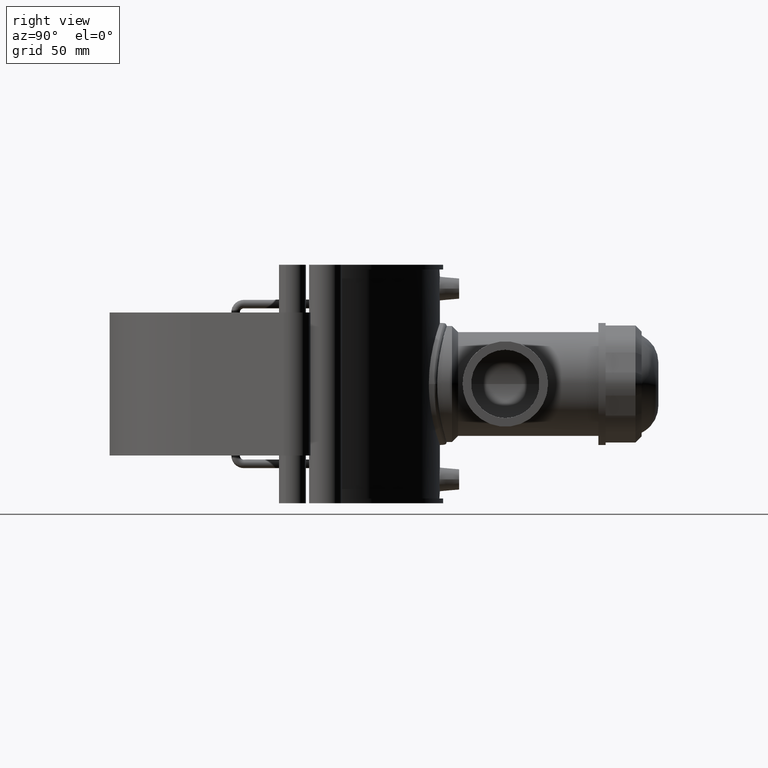
[diagram: clean part render]
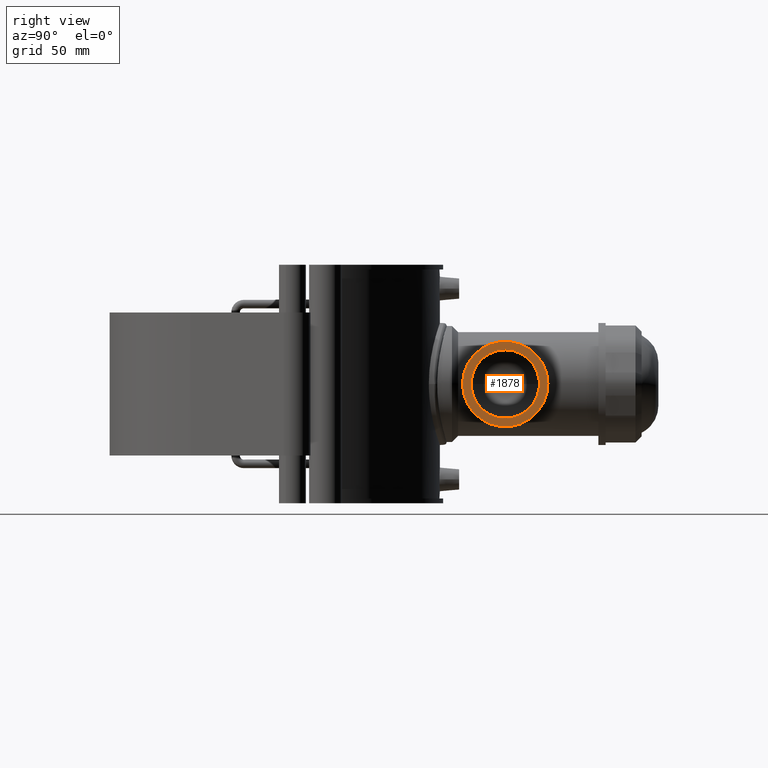
[diagram: same view with one face highlighted and labeled with its STEP entity id]
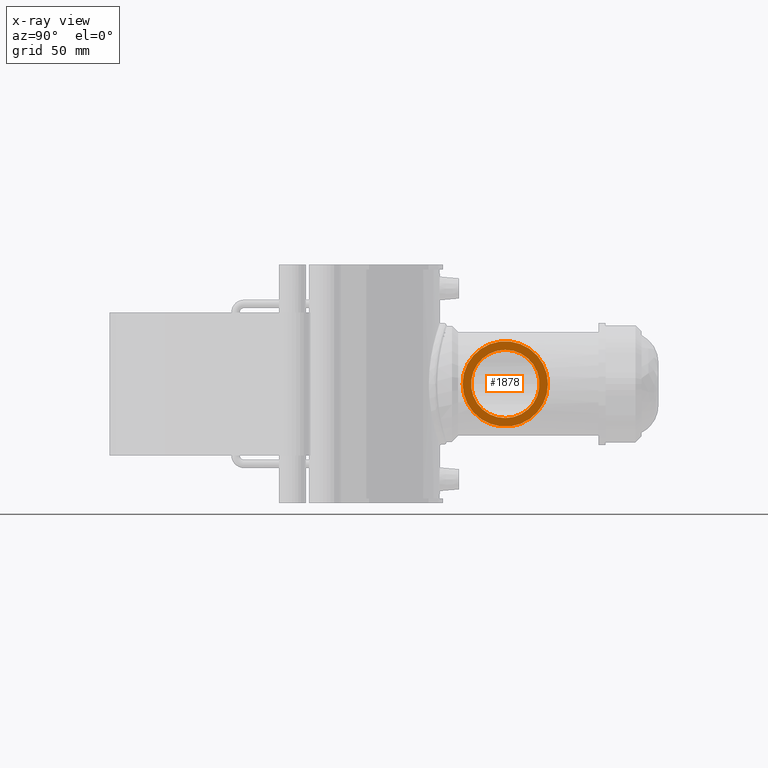
[diagram: x-ray of the same camera — body ghosted, the highlighted face saturated]
A machine part, right view. The second image highlights one B-rep face of the part: STEP entity #1878.
The next image is the same camera in x-ray: the body ghosted, the highlighted face saturated — about 0% of this face is hidden behind the body in this view.
In plain terms, the highlighted planar face has unit normal (1, 0, 0).
Its self-contained STEP definition (entity closure, byte-faithful):
#366=FACE_BOUND('',#584,.T.);
#457=FACE_OUTER_BOUND('',#583,.T.);
#583=EDGE_LOOP('',(#1276));
#584=EDGE_LOOP('',(#1277));
#735=CIRCLE('',#2002,31.5000000000001);
#736=CIRCLE('',#2004,25.2);
#824=VERTEX_POINT('',#3009);
#826=VERTEX_POINT('',#3079);
#1002=EDGE_CURVE('',#824,#824,#735,.T.);
#1004=EDGE_CURVE('',#826,#826,#736,.T.);
#1276=ORIENTED_EDGE('',*,*,#1002,.T.);
#1277=ORIENTED_EDGE('',*,*,#1004,.F.);
#1806=PLANE('',#2005);
#1878=ADVANCED_FACE('',(#457,#366),#1806,.T.);
#2002=AXIS2_PLACEMENT_3D('',#3010,#2222,#2223);
#2004=AXIS2_PLACEMENT_3D('',#3080,#2226,#2227);
#2005=AXIS2_PLACEMENT_3D('',#3081,#2228,#2229);
#2222=DIRECTION('center_axis',(1.,0.,0.));
#2223=DIRECTION('ref_axis',(0.,0.,-1.));
#2226=DIRECTION('center_axis',(1.,0.,0.));
#2227=DIRECTION('ref_axis',(0.,0.,-1.));
#2228=DIRECTION('center_axis',(1.,0.,0.));
#2229=DIRECTION('ref_axis',(0.,0.,-1.));
#3009=CARTESIAN_POINT('',(175.,208.,0.));
#3010=CARTESIAN_POINT('Origin',(175.,176.5,0.));
#3079=CARTESIAN_POINT('',(175.,176.5,-25.2));
#3080=CARTESIAN_POINT('Origin',(175.,176.5,0.));
#3081=CARTESIAN_POINT('Origin',(175.,201.7,0.));